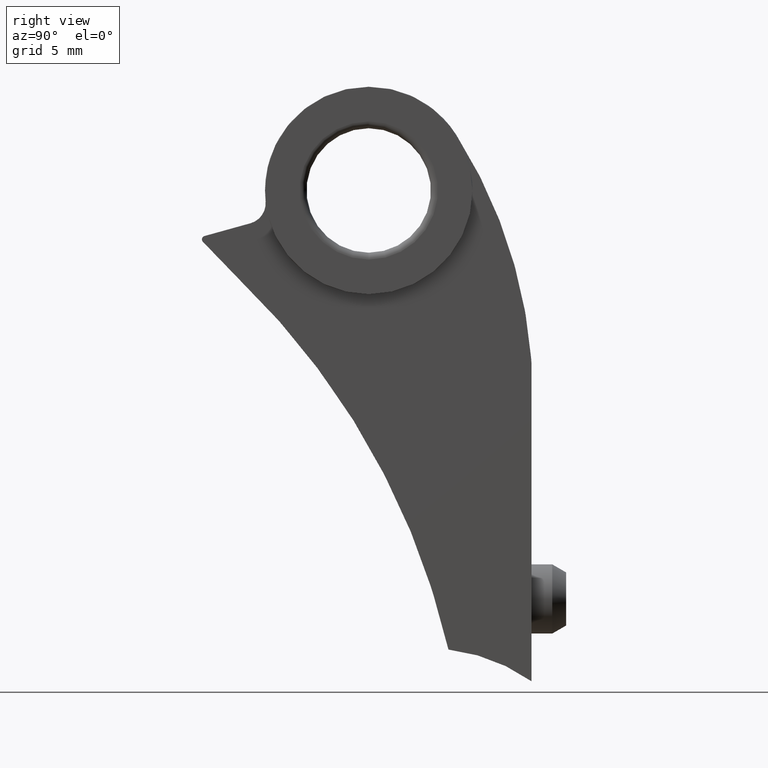
[diagram: clean part render]
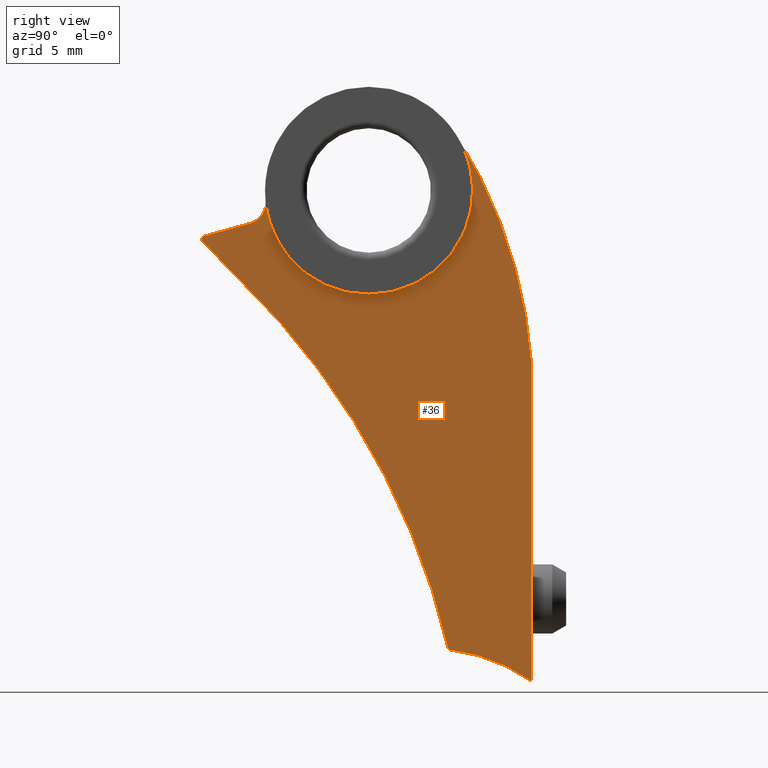
[diagram: same view with one face highlighted and labeled with its STEP entity id]
A machine part, right view. The second image highlights one B-rep face of the part: STEP entity #36.
In plain terms, the highlighted planar face has unit normal (-1, 0, 0).
Its self-contained STEP definition (entity closure, byte-faithful):
#29 = DIRECTION ( 'NONE',  ( -1.156482317317871500E-016, 0.0000000000000000000, -1.000000000000000000 ) ) ;
#36 = ADVANCED_FACE ( 'NONE', ( #1295 ), #924, .F. ) ;
#50 = AXIS2_PLACEMENT_3D ( 'NONE', #156, #415, #1384 ) ;
#64 = DIRECTION ( 'NONE',  ( -1.000000000000000000, 0.0000000000000000000, 6.052673018837545200E-017 ) ) ;
#100 = VECTOR ( 'NONE', #1379, 1000.000000000000000 ) ;
#135 = CARTESIAN_POINT ( 'NONE',  ( 5.500000000000001800, -14.69999999999999800, 0.0000000000000000000 ) ) ;
#150 = VERTEX_POINT ( 'NONE', #793 ) ;
#156 = CARTESIAN_POINT ( 'NONE',  ( 5.499999999999998200, -50.12929104237355200, 20.48486976408373300 ) ) ;
#170 = EDGE_CURVE ( 'NONE', #1385, #150, #275, .T. ) ;
#177 = VECTOR ( 'NONE', #470, 1000.000000000000100 ) ;
#205 = ORIENTED_EDGE ( 'NONE', *, *, #1089, .F. ) ;
#212 = ORIENTED_EDGE ( 'NONE', *, *, #936, .F. ) ;
#275 = CIRCLE ( 'NONE', #50, 35.51494799158853500 ) ;
#287 = CIRCLE ( 'NONE', #720, 13.00000000000000900 ) ;
#295 = ORIENTED_EDGE ( 'NONE', *, *, #876, .F. ) ;
#332 = CARTESIAN_POINT ( 'NONE',  ( 5.500000000000001800, -35.02346521516957300, 33.11917342974239600 ) ) ;
#364 = CARTESIAN_POINT ( 'NONE',  ( 5.500000000000001800, -14.69999999999999800, 0.0000000000000000000 ) ) ;
#369 = CARTESIAN_POINT ( 'NONE',  ( 5.500000000000001800, -33.93228452461573100, 34.71896238474940300 ) ) ;
#381 = EDGE_CURVE ( 'NONE', #977, #1082, #558, .T. ) ;
#393 = ORIENTED_EDGE ( 'NONE', *, *, #436, .F. ) ;
#394 = DIRECTION ( 'NONE',  ( 1.000000000000000000, -0.0000000000000000000, -6.052673018837545200E-017 ) ) ;
#415 = DIRECTION ( 'NONE',  ( -1.000000000000000000, 0.0000000000000000000, 6.052673018837545200E-017 ) ) ;
#436 = EDGE_CURVE ( 'NONE', #967, #1291, #1043, .T. ) ;
#454 = CARTESIAN_POINT ( 'NONE',  ( 5.499999999999998200, -22.19458540097304000, -10.62220267494092600 ) ) ;
#455 = EDGE_CURVE ( 'NONE', #668, #947, #1310, .T. ) ;
#470 = DIRECTION ( 'NONE',  ( 1.617506508486825400E-017, 0.9636304532086229500, 0.2672383760782567900 ) ) ;
#476 = EDGE_LOOP ( 'NONE', ( #212, #1133, #205, #845, #774, #1046, #1250, #295, #393, #561 ) ) ;
#492 = CARTESIAN_POINT ( 'NONE',  ( 5.500000000000001800, -38.75838152966954200, 0.0000000000000000000 ) ) ;
#493 = CARTESIAN_POINT ( 'NONE',  ( 5.500000000000001800, -35.42432277928695300, 34.56461910955533100 ) ) ;
#496 = DIRECTION ( 'NONE',  ( 6.401411227335985800E-017, -1.792395143654076100E-015, 1.000000000000000000 ) ) ;
#497 = CARTESIAN_POINT ( 'NONE',  ( 5.500000000000005300, -38.28664264345104600, 31.95477868375541800 ) ) ;
#510 = AXIS2_PLACEMENT_3D ( 'NONE', #1311, #679, #29 ) ;
#540 = CIRCLE ( 'NONE', #1197, 1.499999999999994400 ) ;
#558 = CIRCLE ( 'NONE', #952, 0.2500000000000002200 ) ;
#561 = ORIENTED_EDGE ( 'NONE', *, *, #1123, .F. ) ;
#599 = DIRECTION ( 'NONE',  ( 4.353928600885728200E-017, -0.6946583704589994700, 0.7193398003386489700 ) ) ;
#602 = DIRECTION ( 'NONE',  ( 1.000000000000000000, -0.0000000000000000000, -6.052673018837545200E-017 ) ) ;
#657 = DIRECTION ( 'NONE',  ( 6.672013369141561800E-017, -7.205774438672885400E-015, 1.000000000000000000 ) ) ;
#668 = VERTEX_POINT ( 'NONE', #744 ) ;
#679 = DIRECTION ( 'NONE',  ( 1.000000000000000000, 0.0000000000000000000, -6.052673018837545200E-017 ) ) ;
#682 = LINE ( 'NONE', #135, #100 ) ;
#691 = CARTESIAN_POINT ( 'NONE',  ( 5.500000000000005300, -35.97974804783353900, 29.20603026436744200 ) ) ;
#712 = DIRECTION ( 'NONE',  ( 6.052673018837545200E-017, 0.0000000000000000000, 1.000000000000000000 ) ) ;
#714 = DIRECTION ( 'NONE',  ( 0.0000000000000000000, 0.0000000000000000000, 1.000000000000000000 ) ) ;
#716 = AXIS2_PLACEMENT_3D ( 'NONE', #1288, #858, #958 ) ;
#720 = AXIS2_PLACEMENT_3D ( 'NONE', #454, #1202, #657 ) ;
#722 = CARTESIAN_POINT ( 'NONE',  ( 5.500000000000005300, -38.75838152966954200, 32.08338946572203600 ) ) ;
#727 = AXIS2_PLACEMENT_3D ( 'NONE', #492, #64, #712 ) ;
#744 = CARTESIAN_POINT ( 'NONE',  ( 5.500000000000001800, -20.70657975428310500, 2.292356519836832100 ) ) ;
#769 = VERTEX_POINT ( 'NONE', #332 ) ;
#774 = ORIENTED_EDGE ( 'NONE', *, *, #816, .F. ) ;
#793 = CARTESIAN_POINT ( 'NONE',  ( 5.500000000000001800, -14.69999999999999800, 22.94999999999988900 ) ) ;
#798 = CIRCLE ( 'NONE', #510, 7.500000000000000000 ) ;
#816 = EDGE_CURVE ( 'NONE', #930, #668, #287, .T. ) ;
#821 = DIRECTION ( 'NONE',  ( 0.0000000000000000000, 0.0000000000000000000, 1.000000000000000000 ) ) ;
#845 = ORIENTED_EDGE ( 'NONE', *, *, #455, .F. ) ;
#858 = DIRECTION ( 'NONE',  ( 1.000000000000000000, 0.0000000000000000000, -6.052673018837545200E-017 ) ) ;
#861 = AXIS2_PLACEMENT_3D ( 'NONE', #1252, #394, #496 ) ;
#876 = EDGE_CURVE ( 'NONE', #1291, #1385, #798, .T. ) ;
#924 = PLANE ( 'NONE',  #727 ) ;
#930 = VERTEX_POINT ( 'NONE', #364 ) ;
#936 = EDGE_CURVE ( 'NONE', #977, #769, #1080, .T. ) ;
#945 = DIRECTION ( 'NONE',  ( 1.000000000000000000, -0.0000000000000000000, -6.052673018837545200E-017 ) ) ;
#947 = VERTEX_POINT ( 'NONE', #691 ) ;
#952 = AXIS2_PLACEMENT_3D ( 'NONE', #497, #945, #821 ) ;
#958 = DIRECTION ( 'NONE',  ( -1.156482317317871500E-016, 0.0000000000000000000, -1.000000000000000000 ) ) ;
#967 = VERTEX_POINT ( 'NONE', #369 ) ;
#974 = CARTESIAN_POINT ( 'NONE',  ( 5.500000000000001800, -20.13872495492623900, 39.50794723855391800 ) ) ;
#976 = CARTESIAN_POINT ( 'NONE',  ( 5.500000000000001800, -38.35345223747060600, 32.19568629705757700 ) ) ;
#977 = VERTEX_POINT ( 'NONE', #976 ) ;
#1043 = CIRCLE ( 'NONE', #716, 7.500000000000000000 ) ;
#1045 = VECTOR ( 'NONE', #599, 1000.000000000000100 ) ;
#1046 = ORIENTED_EDGE ( 'NONE', *, *, #1254, .T. ) ;
#1059 = CARTESIAN_POINT ( 'NONE',  ( 5.500000000000000900, -26.47209325125959000, 27.99067876071980600 ) ) ;
#1080 = LINE ( 'NONE', #1224, #177 ) ;
#1082 = VERTEX_POINT ( 'NONE', #1184 ) ;
#1089 = EDGE_CURVE ( 'NONE', #947, #1082, #1274, .T. ) ;
#1123 = EDGE_CURVE ( 'NONE', #769, #967, #540, .T. ) ;
#1133 = ORIENTED_EDGE ( 'NONE', *, *, #381, .T. ) ;
#1184 = CARTESIAN_POINT ( 'NONE',  ( 5.500000000000005300, -38.46647759353570700, 31.78111409114066500 ) ) ;
#1197 = AXIS2_PLACEMENT_3D ( 'NONE', #493, #602, #714 ) ;
#1202 = DIRECTION ( 'NONE',  ( 1.000000000000000000, -0.0000000000000000000, -6.052673018837545200E-017 ) ) ;
#1224 = CARTESIAN_POINT ( 'NONE',  ( 5.500000000000001800, -38.75838152966954200, 32.08338946572203600 ) ) ;
#1250 = ORIENTED_EDGE ( 'NONE', *, *, #170, .F. ) ;
#1252 = CARTESIAN_POINT ( 'NONE',  ( 5.499999999999998200, -73.51849071569044700, -9.887231263459192100 ) ) ;
#1254 = EDGE_CURVE ( 'NONE', #930, #150, #682, .T. ) ;
#1274 = LINE ( 'NONE', #722, #1045 ) ;
#1288 = CARTESIAN_POINT ( 'NONE',  ( 5.500000000000001800, -26.47209325125959000, 35.49067876071980300 ) ) ;
#1291 = VERTEX_POINT ( 'NONE', #1059 ) ;
#1295 = FACE_OUTER_BOUND ( 'NONE', #476, .T. ) ;
#1310 = CIRCLE ( 'NONE', #861, 54.19815769900883100 ) ;
#1311 = CARTESIAN_POINT ( 'NONE',  ( 5.500000000000001800, -26.47209325125959000, 35.49067876071980300 ) ) ;
#1379 = DIRECTION ( 'NONE',  ( 6.052673018837545200E-017, 0.0000000000000000000, 1.000000000000000000 ) ) ;
#1384 = DIRECTION ( 'NONE',  ( 4.884488290360622800E-017, 0.0000000000000000000, 1.000000000000000000 ) ) ;
#1385 = VERTEX_POINT ( 'NONE', #974 ) ;